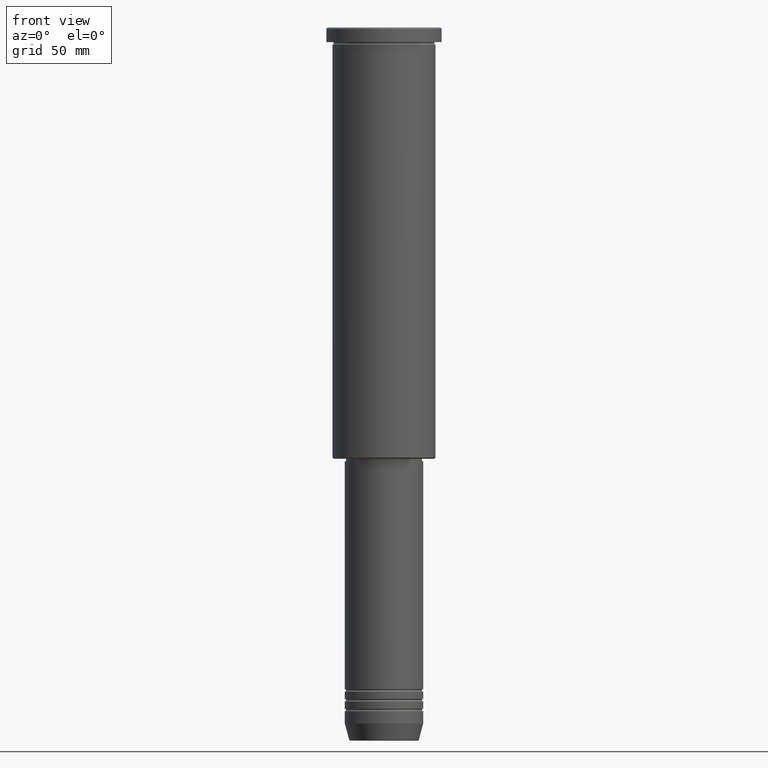
[diagram: clean part render]
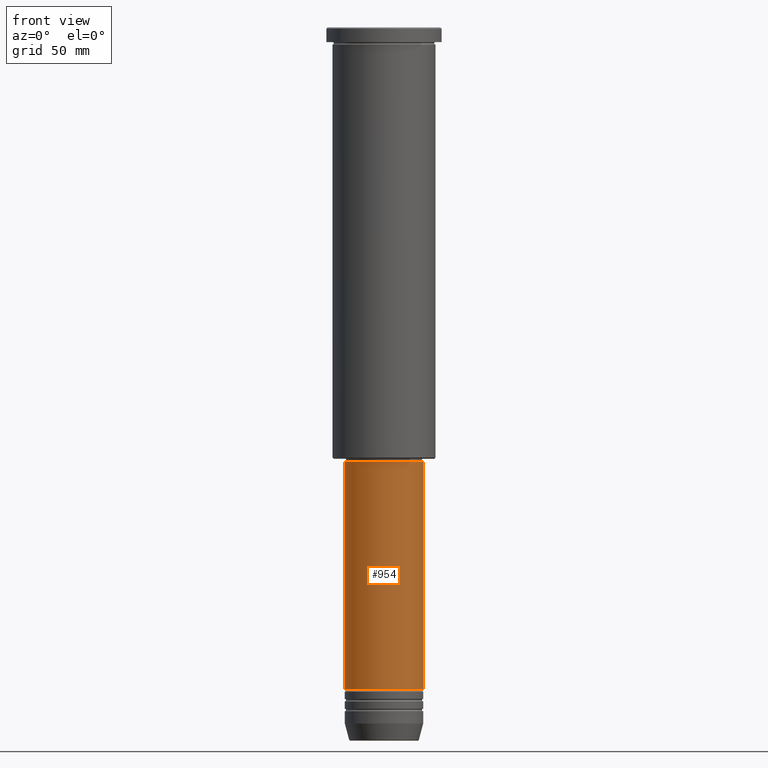
[diagram: same view with one face highlighted and labeled with its STEP entity id]
A machine part, front view. The second image highlights one B-rep face of the part: STEP entity #954.
In plain terms, the highlighted cylindrical surface (partial cylindrical patch) has radius 16 mm, axis along (-0, -0, 1).
Its self-contained STEP definition (entity closure, byte-faithful):
#13 = VECTOR ( 'NONE', #1096, 1000.000000000000000 ) ;
#35 = CARTESIAN_POINT ( 'NONE',  ( 0.000000000000000000, 0.000000000000000000, -176.9999999999998863 ) ) ;
#48 = CARTESIAN_POINT ( 'NONE',  ( -16.00000000000000000, 1.959434878635765131E-15, -269.9999999999998863 ) ) ;
#118 = VERTEX_POINT ( 'NONE', #1017 ) ;
#146 = LINE ( 'NONE', #1064, #947 ) ;
#147 = ORIENTED_EDGE ( 'NONE', *, *, #1145, .F. ) ;
#148 = CARTESIAN_POINT ( 'NONE',  ( 16.00000000000000000, 0.000000000000000000, -269.9999999999998863 ) ) ;
#155 = ORIENTED_EDGE ( 'NONE', *, *, #206, .T. ) ;
#206 = EDGE_CURVE ( 'NONE', #324, #998, #423, .T. ) ;
#217 = DIRECTION ( 'NONE',  ( -0.000000000000000000, -0.000000000000000000, 1.000000000000000000 ) ) ;
#224 = DIRECTION ( 'NONE',  ( 1.000000000000000000, 0.000000000000000000, 0.000000000000000000 ) ) ;
#271 = CARTESIAN_POINT ( 'NONE',  ( -16.00000000000000000, 1.959434878635765131E-15, 0.000000000000000000 ) ) ;
#295 = EDGE_CURVE ( 'NONE', #118, #420, #1173, .T. ) ;
#309 = AXIS2_PLACEMENT_3D ( 'NONE', #870, #588, #1031 ) ;
#324 = VERTEX_POINT ( 'NONE', #48 ) ;
#394 = CYLINDRICAL_SURFACE ( 'NONE', #1082, 16.00000000000000000 ) ;
#408 = EDGE_LOOP ( 'NONE', ( #147, #155, #526, #528 ) ) ;
#420 = VERTEX_POINT ( 'NONE', #889 ) ;
#423 = CIRCLE ( 'NONE', #309, 16.00000000000000000 ) ;
#444 = LINE ( 'NONE', #271, #13 ) ;
#452 = EDGE_CURVE ( 'NONE', #998, #420, #146, .T. ) ;
#472 = CARTESIAN_POINT ( 'NONE',  ( 0.000000000000000000, 0.000000000000000000, 0.000000000000000000 ) ) ;
#526 = ORIENTED_EDGE ( 'NONE', *, *, #452, .T. ) ;
#528 = ORIENTED_EDGE ( 'NONE', *, *, #295, .F. ) ;
#588 = DIRECTION ( 'NONE',  ( -0.000000000000000000, -0.000000000000000000, 1.000000000000000000 ) ) ;
#772 = AXIS2_PLACEMENT_3D ( 'NONE', #35, #217, #951 ) ;
#870 = CARTESIAN_POINT ( 'NONE',  ( 0.000000000000000000, 0.000000000000000000, -269.9999999999998863 ) ) ;
#889 = CARTESIAN_POINT ( 'NONE',  ( 16.00000000000000355, 0.000000000000000000, -176.9999999999998863 ) ) ;
#947 = VECTOR ( 'NONE', #991, 1000.000000000000000 ) ;
#949 = FACE_OUTER_BOUND ( 'NONE', #408, .T. ) ;
#951 = DIRECTION ( 'NONE',  ( 1.000000000000000000, 0.000000000000000000, 0.000000000000000000 ) ) ;
#954 = ADVANCED_FACE ( 'NONE', ( #949 ), #394, .T. ) ;
#991 = DIRECTION ( 'NONE',  ( -0.000000000000000000, -0.000000000000000000, 1.000000000000000000 ) ) ;
#998 = VERTEX_POINT ( 'NONE', #148 ) ;
#1017 = CARTESIAN_POINT ( 'NONE',  ( -16.00000000000000355, 1.959434878635765526E-15, -176.9999999999998863 ) ) ;
#1031 = DIRECTION ( 'NONE',  ( 1.000000000000000000, 0.000000000000000000, 0.000000000000000000 ) ) ;
#1044 = DIRECTION ( 'NONE',  ( -0.000000000000000000, -0.000000000000000000, 1.000000000000000000 ) ) ;
#1064 = CARTESIAN_POINT ( 'NONE',  ( 16.00000000000000000, 0.000000000000000000, 0.000000000000000000 ) ) ;
#1082 = AXIS2_PLACEMENT_3D ( 'NONE', #472, #1044, #224 ) ;
#1096 = DIRECTION ( 'NONE',  ( -0.000000000000000000, -0.000000000000000000, 1.000000000000000000 ) ) ;
#1145 = EDGE_CURVE ( 'NONE', #324, #118, #444, .T. ) ;
#1173 = CIRCLE ( 'NONE', #772, 16.00000000000000355 ) ;